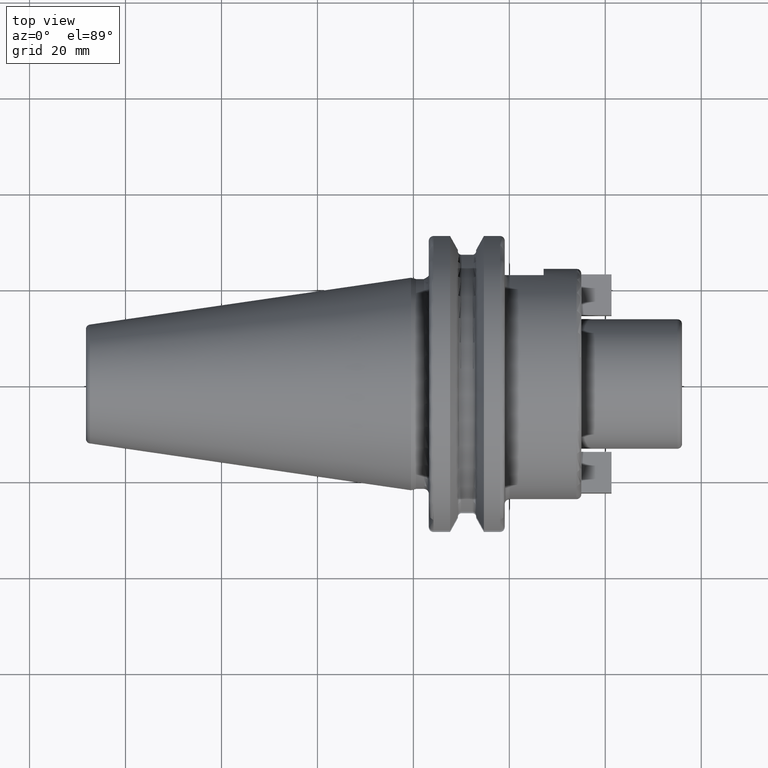
[diagram: clean part render]
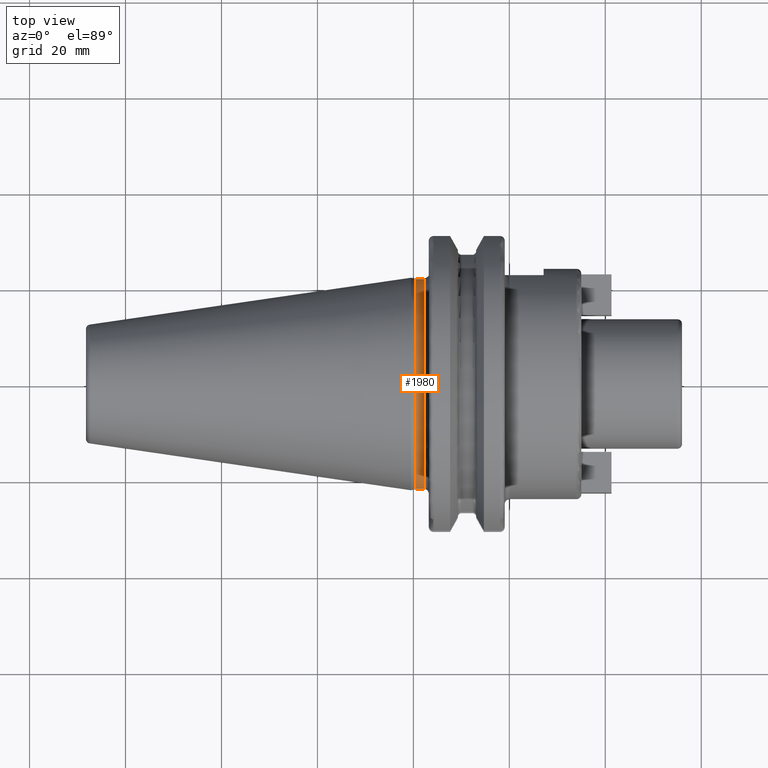
[diagram: same view with one face highlighted and labeled with its STEP entity id]
A machine part, top view. The second image highlights one B-rep face of the part: STEP entity #1980.
In plain terms, the highlighted cylindrical surface (partial cylindrical patch) has radius 21.875 mm, axis along (1, 0, 0).
Its self-contained STEP definition (entity closure, byte-faithful):
#73=CARTESIAN_POINT('',(5.5E-1,0.E0,0.E0));
#74=DIRECTION('',(1.E0,0.E0,0.E0));
#75=DIRECTION('',(0.E0,1.E0,0.E0));
#76=AXIS2_PLACEMENT_3D('',#73,#74,#75);
#78=CARTESIAN_POINT('',(2.2E0,0.E0,0.E0));
#79=DIRECTION('',(1.E0,0.E0,0.E0));
#80=DIRECTION('',(0.E0,1.E0,0.E0));
#81=AXIS2_PLACEMENT_3D('',#78,#79,#80);
#83=DIRECTION('',(-1.E0,0.E0,0.E0));
#84=VECTOR('',#83,1.65E0);
#85=CARTESIAN_POINT('',(2.2E0,2.1875E1,0.E0));
#86=LINE('',#85,#84);
#87=DIRECTION('',(-1.E0,0.E0,0.E0));
#88=VECTOR('',#87,1.65E0);
#89=CARTESIAN_POINT('',(2.2E0,-2.1875E1,0.E0));
#90=LINE('',#89,#88);
#1540=CARTESIAN_POINT('',(2.2E0,2.1875E1,0.E0));
#1541=CARTESIAN_POINT('',(5.5E-1,2.1875E1,0.E0));
#1542=VERTEX_POINT('',#1540);
#1543=VERTEX_POINT('',#1541);
#1545=CARTESIAN_POINT('',(2.2E0,-2.1875E1,0.E0));
#1547=VERTEX_POINT('',#1545);
#1548=CARTESIAN_POINT('',(5.5E-1,-2.1875E1,0.E0));
#1549=VERTEX_POINT('',#1548);
#1966=CARTESIAN_POINT('',(-7.2615E1,0.E0,0.E0));
#1967=DIRECTION('',(1.E0,0.E0,0.E0));
#1968=DIRECTION('',(0.E0,-1.E0,0.E0));
#1969=AXIS2_PLACEMENT_3D('',#1966,#1967,#1968);
#1970=CYLINDRICAL_SURFACE('',#1969,2.1875E1);
#1972=ORIENTED_EDGE('',*,*,#1971,.F.);
#1974=ORIENTED_EDGE('',*,*,#1973,.T.);
#1976=ORIENTED_EDGE('',*,*,#1975,.T.);
#1977=ORIENTED_EDGE('',*,*,#1959,.F.);
#1978=EDGE_LOOP('',(#1972,#1974,#1976,#1977));
#1979=FACE_OUTER_BOUND('',#1978,.F.);
#1980=ADVANCED_FACE('',(#1979),#1970,.T.);
#77=CIRCLE('',#76,2.1875E1);
#82=CIRCLE('',#81,2.1875E1);
#1959=EDGE_CURVE('',#1543,#1549,#77,.T.);
#1971=EDGE_CURVE('',#1542,#1543,#86,.T.);
#1973=EDGE_CURVE('',#1542,#1547,#82,.T.);
#1975=EDGE_CURVE('',#1547,#1549,#90,.T.);